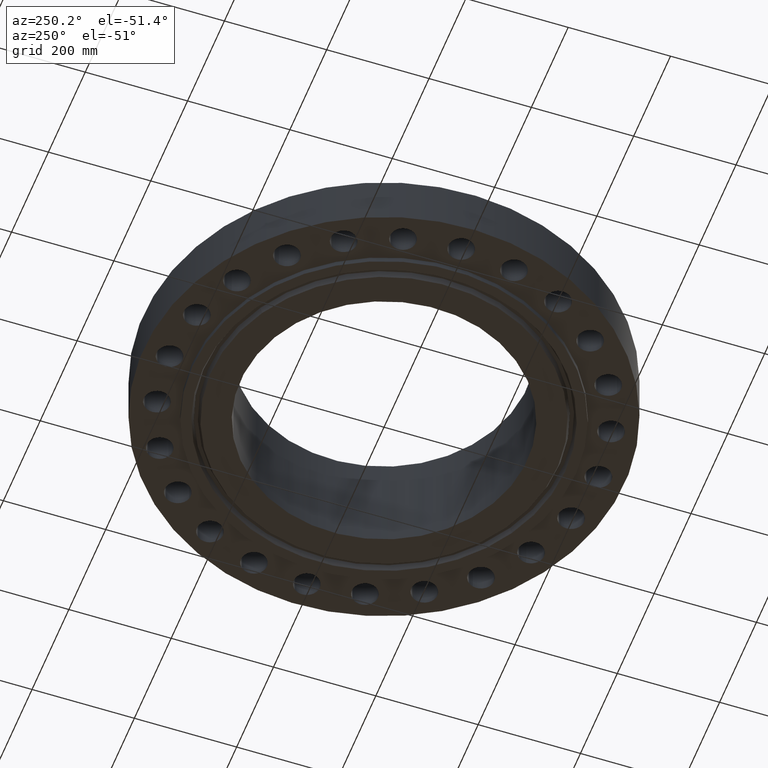
[diagram: clean part render]
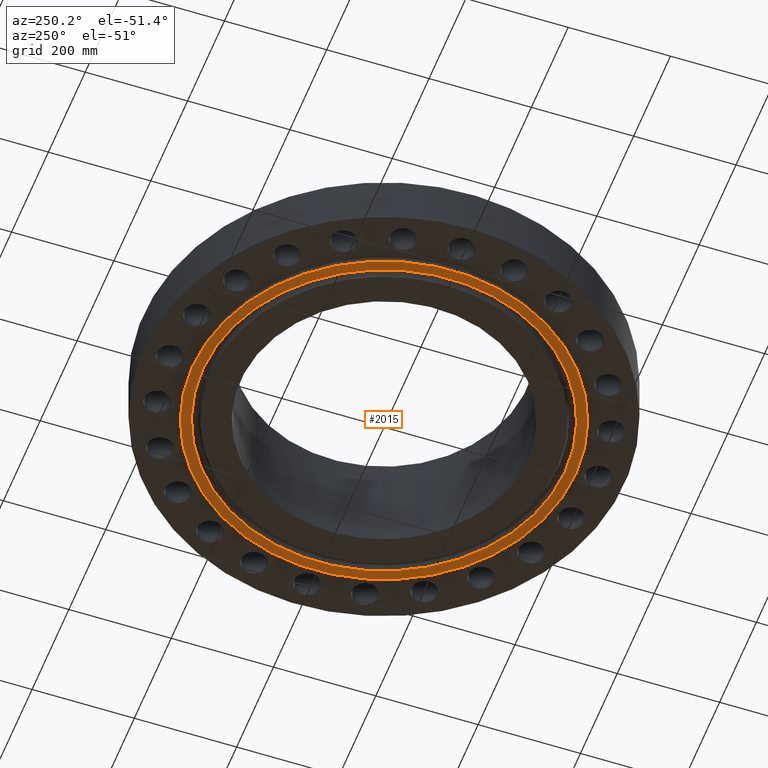
[diagram: same view with one face highlighted and labeled with its STEP entity id]
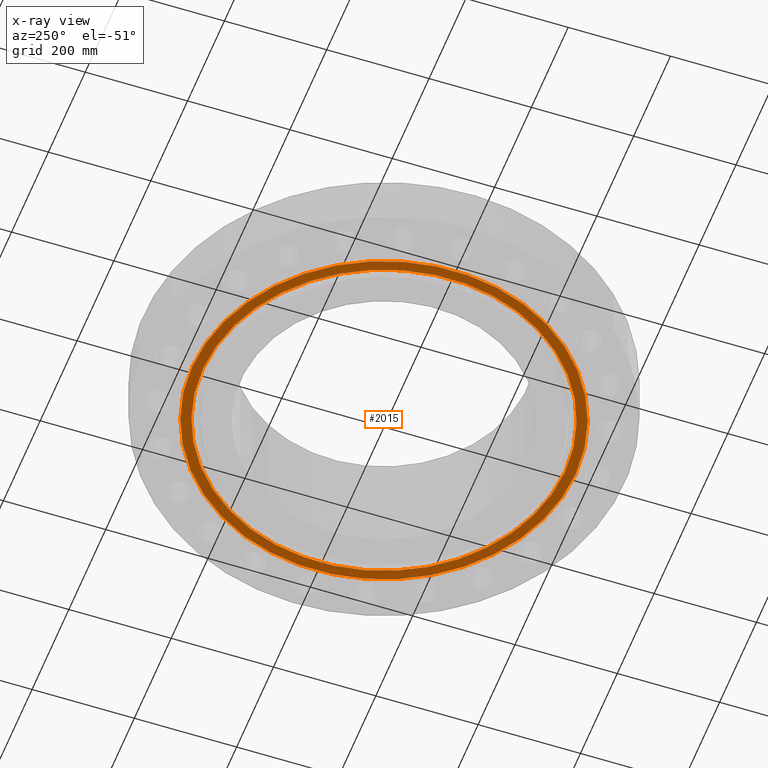
[diagram: x-ray of the same camera — body ghosted, the highlighted face saturated]
A machine part, auxiliary view. The second image highlights one B-rep face of the part: STEP entity #2015.
The next image is the same camera in x-ray: the body ghosted, the highlighted face saturated — about 0% of this face is hidden behind the body in this view.
In plain terms, the highlighted planar face has unit normal (0, 0, -1).
Its self-contained STEP definition (entity closure, byte-faithful):
#517=AXIS2_PLACEMENT_3D('Circle Axis2P3D',#515,#516,$) ;
#552=AXIS2_PLACEMENT_3D('Circle Axis2P3D',#550,#551,$) ;
#1991=AXIS2_PLACEMENT_3D('Plane Axis2P3D',#1988,#1989,#1990) ;
#1999=AXIS2_PLACEMENT_3D('Circle Axis2P3D',#1997,#1998,$) ;
#2008=AXIS2_PLACEMENT_3D('Circle Axis2P3D',#2006,#2007,$) ;
#515=CARTESIAN_POINT('Axis2P3D Location',(0.,0.,-0.438000000002)) ;
#519=CARTESIAN_POINT('Vertex',(-7.07152669444,-12.9443427879,-0.438000000002)) ;
#521=CARTESIAN_POINT('Vertex',(7.07152669444,12.9443427879,-0.438000000002)) ;
#550=CARTESIAN_POINT('Axis2P3D Location',(0.,0.,-0.438000000002)) ;
#1988=CARTESIAN_POINT('Axis2P3D Location',(0.,11.031,-0.438000000002)) ;
#1997=CARTESIAN_POINT('Axis2P3D Location',(0.,-4.47585975282E-015,-0.438000000002)) ;
#2001=CARTESIAN_POINT('Vertex',(6.68942454017,-12.2449094861,-0.438000000002)) ;
#2003=CARTESIAN_POINT('Vertex',(-6.68942454017,12.2449094861,-0.438000000002)) ;
#2006=CARTESIAN_POINT('Axis2P3D Location',(1.1189649382E-015,2.23792987641E-015,-0.438000000002)) ;
#516=DIRECTION('Axis2P3D Direction',(0.,0.,-0.0393700787402)) ;
#551=DIRECTION('Axis2P3D Direction',(0.,0.,-0.0393700787402)) ;
#1989=DIRECTION('Axis2P3D Direction',(0.,0.,-0.0393700787402)) ;
#1990=DIRECTION('Axis2P3D XDirection',(0.0393700787402,0.,0.)) ;
#1998=DIRECTION('Axis2P3D Direction',(0.,0.,-0.0393700787402)) ;
#2007=DIRECTION('Axis2P3D Direction',(0.,0.,-0.0393700787402)) ;
#1994=ORIENTED_EDGE('',*,*,#523,.T.) ;
#1995=ORIENTED_EDGE('',*,*,#554,.T.) ;
#2012=ORIENTED_EDGE('',*,*,#2005,.F.) ;
#2013=ORIENTED_EDGE('',*,*,#2010,.F.) ;
#2014=FACE_BOUND('',#2011,.T.) ;
#2015=ADVANCED_FACE('PartBody',(#1996,#2014),#1992,.T.) ;
#518=CIRCLE('generated circle',#517,14.7500000001) ;
#553=CIRCLE('generated circle',#552,14.7500000001) ;
#2000=CIRCLE('generated circle',#1999,13.9530000001) ;
#2009=CIRCLE('generated circle',#2008,13.9530000001) ;
#523=EDGE_CURVE('',#520,#522,#518,.T.) ;
#554=EDGE_CURVE('',#522,#520,#553,.T.) ;
#2005=EDGE_CURVE('',#2002,#2004,#2000,.T.) ;
#2010=EDGE_CURVE('',#2004,#2002,#2009,.T.) ;
#1993=EDGE_LOOP('',(#1994,#1995)) ;
#2011=EDGE_LOOP('',(#2012,#2013)) ;
#1996=FACE_OUTER_BOUND('',#1993,.T.) ;
#1992=PLANE('',#1991) ;
#520=VERTEX_POINT('',#519) ;
#522=VERTEX_POINT('',#521) ;
#2002=VERTEX_POINT('',#2001) ;
#2004=VERTEX_POINT('',#2003) ;